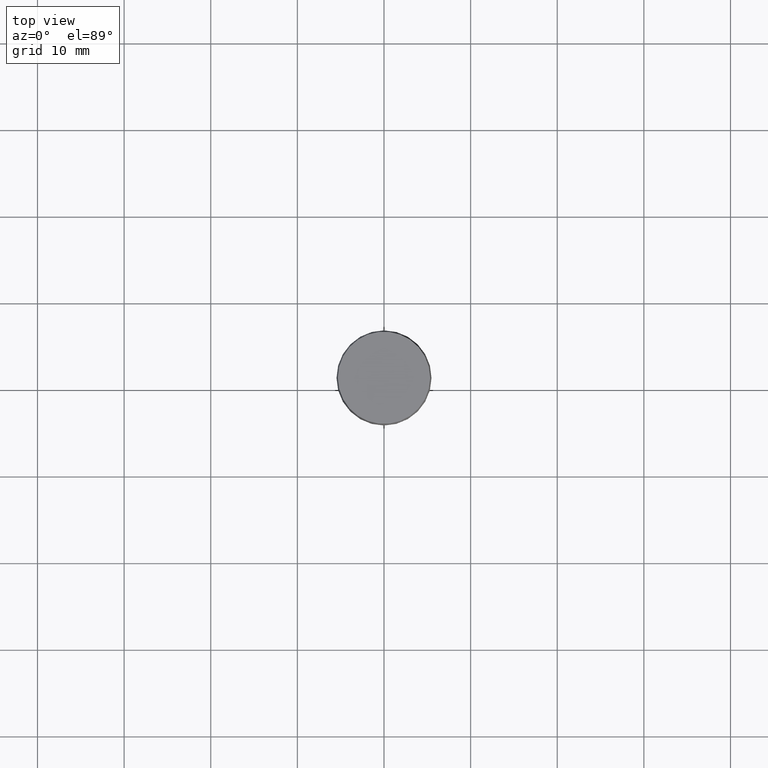
[diagram: clean part render]
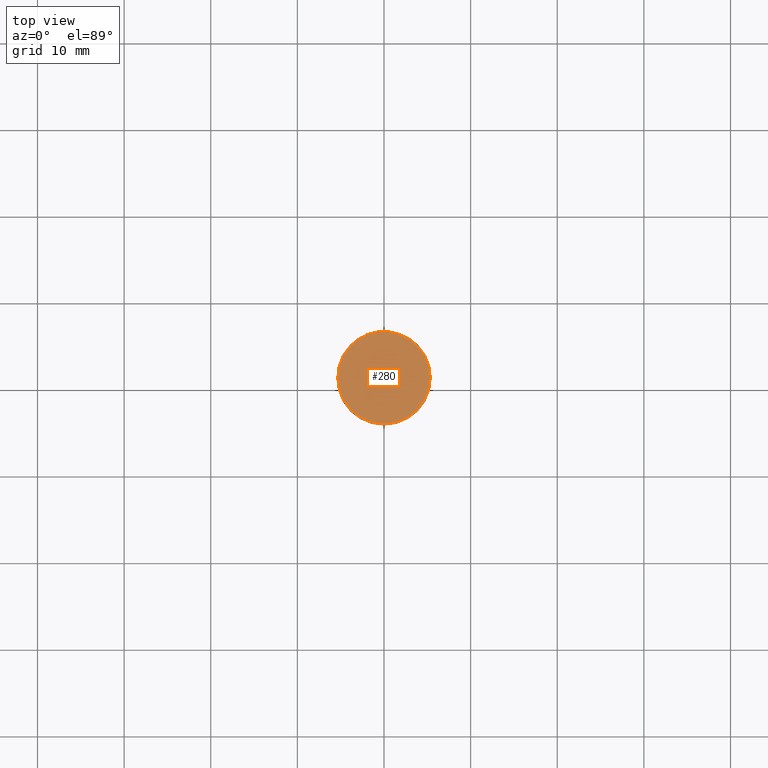
[diagram: same view with one face highlighted and labeled with its STEP entity id]
A machine part, top view. The second image highlights one B-rep face of the part: STEP entity #280.
In plain terms, the highlighted planar face has unit normal (0, 0, 1).
Its self-contained STEP definition (entity closure, byte-faithful):
#2 = CARTESIAN_POINT ( 'NONE',  ( -5.328427118366801300, 0.0000000000000000000, 83.00000000000000000 ) ) ;
#6 = ORIENTED_EDGE ( 'NONE', *, *, #274, .F. ) ;
#21 = VERTEX_POINT ( 'NONE', #397 ) ;
#26 = CIRCLE ( 'NONE', #42, 5.328427118366801300 ) ;
#39 = DIRECTION ( 'NONE',  ( 0.0000000000000000000, 0.0000000000000000000, -1.000000000000000000 ) ) ;
#42 = AXIS2_PLACEMENT_3D ( 'NONE', #99, #39, #55 ) ;
#55 = DIRECTION ( 'NONE',  ( -1.000000000000000000, 0.0000000000000000000, 0.0000000000000000000 ) ) ;
#58 = DIRECTION ( 'NONE',  ( -1.000000000000000000, 0.0000000000000000000, 0.0000000000000000000 ) ) ;
#63 = AXIS2_PLACEMENT_3D ( 'NONE', #156, #178, #58 ) ;
#85 = PLANE ( 'NONE',  #238 ) ;
#99 = CARTESIAN_POINT ( 'NONE',  ( 0.0000000000000000000, 0.0000000000000000000, 83.00000000000000000 ) ) ;
#119 = DIRECTION ( 'NONE',  ( 0.0000000000000000000, -0.0000000000000000000, 1.000000000000000000 ) ) ;
#156 = CARTESIAN_POINT ( 'NONE',  ( 0.0000000000000000000, 0.0000000000000000000, 83.00000000000000000 ) ) ;
#178 = DIRECTION ( 'NONE',  ( 0.0000000000000000000, 0.0000000000000000000, -1.000000000000000000 ) ) ;
#193 = CARTESIAN_POINT ( 'NONE',  ( 5.328427118366801300, 0.0000000000000000000, 83.00000000000000000 ) ) ;
#199 = FACE_OUTER_BOUND ( 'NONE', #311, .T. ) ;
#234 = EDGE_CURVE ( 'NONE', #293, #21, #26, .T. ) ;
#238 = AXIS2_PLACEMENT_3D ( 'NONE', #193, #119, #307 ) ;
#274 = EDGE_CURVE ( 'NONE', #21, #293, #440, .T. ) ;
#280 = ADVANCED_FACE ( 'NONE', ( #199 ), #85, .T. ) ;
#293 = VERTEX_POINT ( 'NONE', #2 ) ;
#307 = DIRECTION ( 'NONE',  ( 1.000000000000000000, 0.0000000000000000000, 0.0000000000000000000 ) ) ;
#311 = EDGE_LOOP ( 'NONE', ( #408, #6 ) ) ;
#397 = CARTESIAN_POINT ( 'NONE',  ( 5.328427118366801300, 6.525441214997862000E-016, 83.00000000000000000 ) ) ;
#408 = ORIENTED_EDGE ( 'NONE', *, *, #234, .F. ) ;
#440 = CIRCLE ( 'NONE', #63, 5.328427118366801300 ) ;